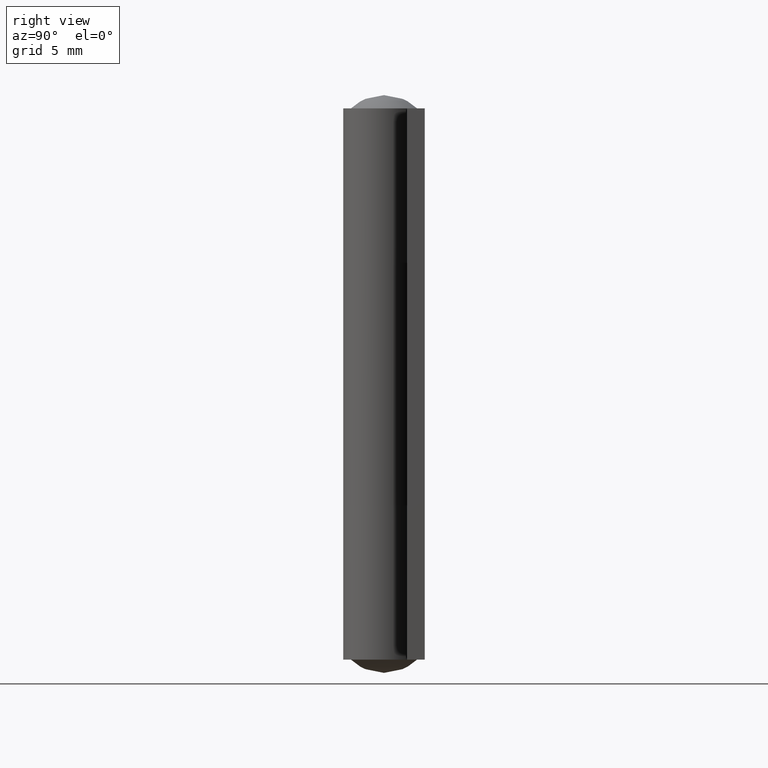
[diagram: clean part render]
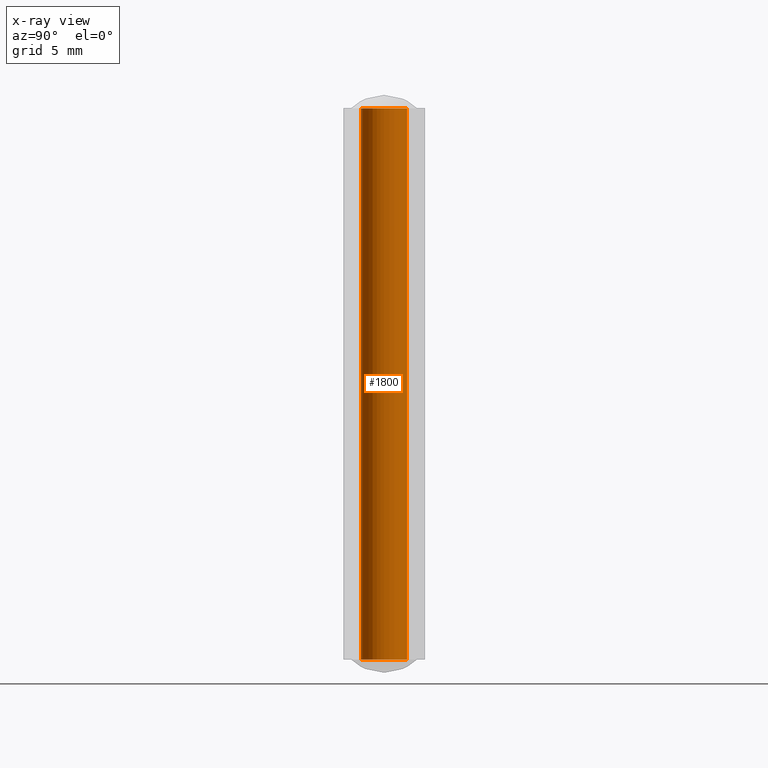
[diagram: x-ray — body ghosted, one internal face saturated and labeled with its STEP entity id]
A machine part, right view, then the same camera in x-ray: the body is ghosted and one INTERNAL B-rep face — a face not visible from any outside direction — is saturated and labeled: STEP entity #1800.
In plain terms, the highlighted face is a freeform B-spline surface patch.
Its self-contained STEP definition (entity closure, byte-faithful):
#1614=CARTESIAN_POINT('',(0.064100966565550,-1.048041538339660,-1.165734E-015));
#1615=VERTEX_POINT('',#1614);
#1629=CARTESIAN_POINT('',(-1.050000000000000,0.0,0.0));
#1630=VERTEX_POINT('',#1629);
#1631=CARTESIAN_POINT('',(0.064100966565551,-1.048041538339661,0.0));
#1632=CARTESIAN_POINT('',(0.032080401490569,-1.050000000000001,0.0));
#1633=CARTESIAN_POINT('',(0.0,-1.050000000000000,0.0));
#1634=CARTESIAN_POINT('',(-1.050000000000000,-1.050000000000000,0.0));
#1635=CARTESIAN_POINT('',(-1.050000000000000,0.0,0.0));
#1643=(BOUNDED_CURVE()B_SPLINE_CURVE(2,(#1631,#1632,#1633,#1634,#1635),.UNSPECIFIED.,.F.,.U.)B_SPLINE_CURVE_WITH_KNOTS((3,2,3),(0.739332962233086,0.750000000000000,1.0),.UNSPECIFIED.)CURVE()GEOMETRIC_REPRESENTATION_ITEM()RATIONAL_B_SPLINE_CURVE((0.976072041654165,0.987502787892976,1.0,0.707106781186548,1.0))REPRESENTATION_ITEM(''));
#1644=EDGE_CURVE('',#1615,#1630,#1643,.T.);
#1646=CARTESIAN_POINT('',(-0.064100966565550,1.048041538339660,-1.165734E-015));
#1647=VERTEX_POINT('',#1646);
#1648=CARTESIAN_POINT('',(-1.050000000000000,0.0,0.0));
#1649=CARTESIAN_POINT('',(-1.050000000000000,0.987741370200038,0.0));
#1650=CARTESIAN_POINT('',(-0.064100966565550,1.048041538339661,0.0));
#1658=(BOUNDED_CURVE()B_SPLINE_CURVE(2,(#1648,#1649,#1650),.UNSPECIFIED.,.F.,.U.)B_SPLINE_CURVE_WITH_KNOTS((3,3),(0.0,0.239332962233086),.UNSPECIFIED.)CURVE()GEOMETRIC_REPRESENTATION_ITEM()RATIONAL_B_SPLINE_CURVE((1.0,0.719603993293572,0.976072041654165))REPRESENTATION_ITEM(''));
#1659=EDGE_CURVE('',#1630,#1647,#1658,.T.);
#1698=CARTESIAN_POINT('',(-0.064100966565550,1.048041538339660,25.0));
#1699=VERTEX_POINT('',#1698);
#1700=CARTESIAN_POINT('',(-0.064100966565550,1.048041538339660,25.0));
#1701=CARTESIAN_POINT('',(-0.064100966565550,1.048041538339660,-1.165734E-015));
#1702=QUASI_UNIFORM_CURVE('',1,(#1700,#1701),.UNSPECIFIED.,.F.,.U.);
#1703=EDGE_CURVE('',#1699,#1647,#1702,.T.);
#1722=CARTESIAN_POINT('',(0.064100966565550,-1.048041538339660,25.0));
#1723=VERTEX_POINT('',#1722);
#1737=CARTESIAN_POINT('',(0.064100966565550,-1.048041538339660,25.0));
#1738=CARTESIAN_POINT('',(0.064100966565550,-1.048041538339660,-1.165734E-015));
#1739=QUASI_UNIFORM_CURVE('',1,(#1737,#1738),.UNSPECIFIED.,.F.,.U.);
#1740=EDGE_CURVE('',#1723,#1615,#1739,.T.);
#1746=CARTESIAN_POINT('',(0.064100966511600,-1.048041538342960,25.625000000000000));
#1747=CARTESIAN_POINT('',(-0.983940571831360,-1.112142504854560,25.625000000000014));
#1748=CARTESIAN_POINT('',(-1.048041538342960,-0.064100966511600,25.625000000000000));
#1749=CARTESIAN_POINT('',(-1.112142504854560,0.983940571831360,25.625000000000014));
#1750=CARTESIAN_POINT('',(-0.064100966511600,1.048041538342960,25.625000000000000));
#1751=CARTESIAN_POINT('',(0.064100966511600,-1.048041538342960,-0.640625000000000));
#1752=CARTESIAN_POINT('',(-0.983940571831360,-1.112142504854560,-0.640625000000000));
#1753=CARTESIAN_POINT('',(-1.048041538342960,-0.064100966511600,-0.640625000000000));
#1754=CARTESIAN_POINT('',(-1.112142504854560,0.983940571831360,-0.640625000000000));
#1755=CARTESIAN_POINT('',(-0.064100966511600,1.048041538342960,-0.640625000000000));
#1763=(BOUNDED_SURFACE()B_SPLINE_SURFACE(2,1,((#1746,#1751),(#1747,#1752),(#1748,#1753),(#1749,#1754),(#1750,#1755)),.UNSPECIFIED.,.F.,.F.,.U.)B_SPLINE_SURFACE_WITH_KNOTS((3,2,3),(2,2),(0.0,1.570796326794897,3.141592653589793),(0.0,26.265625000000000),.UNSPECIFIED.)GEOMETRIC_REPRESENTATION_ITEM()RATIONAL_B_SPLINE_SURFACE(((1.0,1.0),(0.707106781186548,0.707106781186548),(1.0,1.0),(0.707106781186548,0.707106781186548),(1.0,1.0)))REPRESENTATION_ITEM('')SURFACE());
#1764=ORIENTED_EDGE('',*,*,#1659,.F.);
#1765=ORIENTED_EDGE('',*,*,#1644,.F.);
#1766=ORIENTED_EDGE('',*,*,#1740,.F.);
#1767=CARTESIAN_POINT('',(-1.050000000000000,0.0,25.0));
#1768=VERTEX_POINT('',#1767);
#1769=CARTESIAN_POINT('',(0.064100966565551,-1.048041538339661,25.0));
#1770=CARTESIAN_POINT('',(0.032080401490569,-1.050000000000001,25.0));
#1771=CARTESIAN_POINT('',(0.0,-1.050000000000000,25.0));
#1772=CARTESIAN_POINT('',(-1.050000000000000,-1.050000000000000,25.0));
#1773=CARTESIAN_POINT('',(-1.050000000000000,0.0,25.0));
#1781=(BOUNDED_CURVE()B_SPLINE_CURVE(2,(#1769,#1770,#1771,#1772,#1773),.UNSPECIFIED.,.F.,.U.)B_SPLINE_CURVE_WITH_KNOTS((3,2,3),(0.739332962233086,0.750000000000000,1.0),.UNSPECIFIED.)CURVE()GEOMETRIC_REPRESENTATION_ITEM()RATIONAL_B_SPLINE_CURVE((0.976072041654165,0.987502787892976,1.0,0.707106781186548,1.0))REPRESENTATION_ITEM(''));
#1782=EDGE_CURVE('',#1723,#1768,#1781,.T.);
#1783=ORIENTED_EDGE('',*,*,#1782,.T.);
#1784=CARTESIAN_POINT('',(-1.050000000000000,0.0,25.0));
#1785=CARTESIAN_POINT('',(-1.050000000000000,0.987741370200038,25.000000000000004));
#1786=CARTESIAN_POINT('',(-0.064100966565550,1.048041538339661,24.999999999999996));
#1794=(BOUNDED_CURVE()B_SPLINE_CURVE(2,(#1784,#1785,#1786),.UNSPECIFIED.,.F.,.U.)B_SPLINE_CURVE_WITH_KNOTS((3,3),(0.0,0.239332962233086),.UNSPECIFIED.)CURVE()GEOMETRIC_REPRESENTATION_ITEM()RATIONAL_B_SPLINE_CURVE((1.0,0.719603993293572,0.976072041654165))REPRESENTATION_ITEM(''));
#1795=EDGE_CURVE('',#1768,#1699,#1794,.T.);
#1796=ORIENTED_EDGE('',*,*,#1795,.T.);
#1797=ORIENTED_EDGE('',*,*,#1703,.T.);
#1798=EDGE_LOOP('',(#1764,#1765,#1766,#1783,#1796,#1797));
#1799=FACE_OUTER_BOUND('',#1798,.T.);
#1800=ADVANCED_FACE('',(#1799),#1763,.T.);